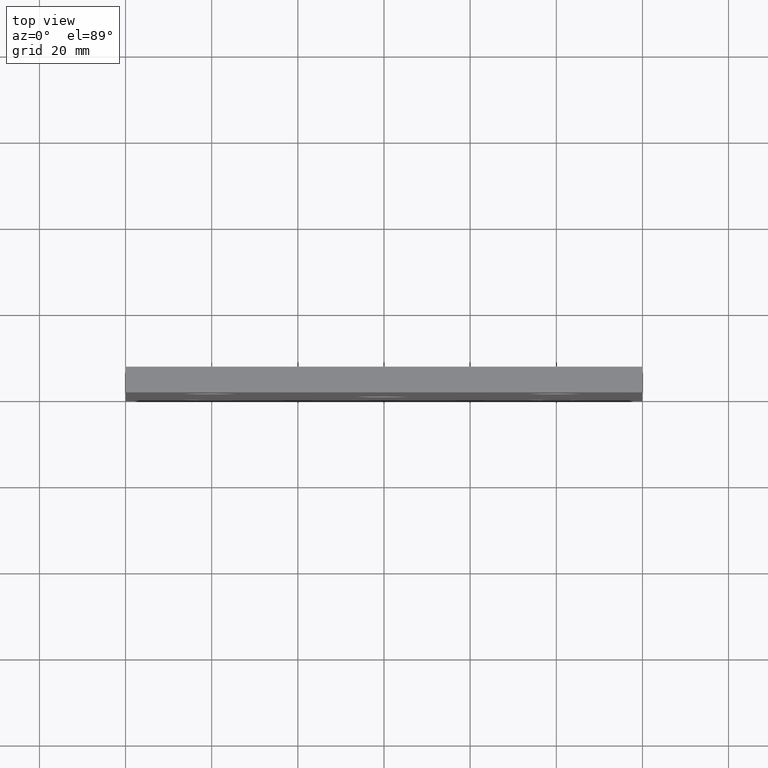
[diagram: clean part render]
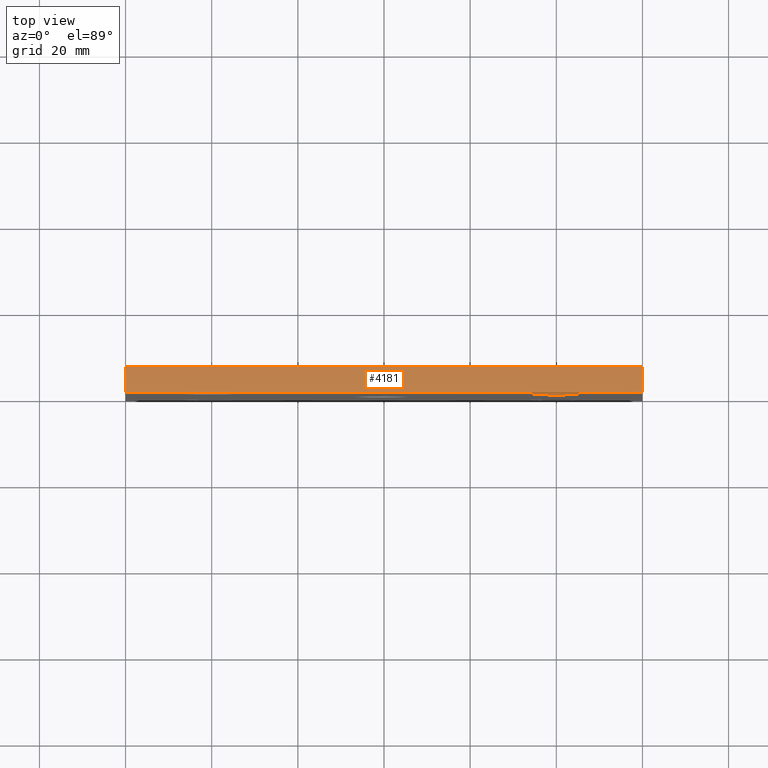
[diagram: same view with one face highlighted and labeled with its STEP entity id]
A machine part, top view. The second image highlights one B-rep face of the part: STEP entity #4181.
In plain terms, the highlighted planar face has unit normal (0, 0, -1).
Its self-contained STEP definition (entity closure, byte-faithful):
#787 = ORIENTED_EDGE ( 'NONE', *, *, #3077, .T. ) ;
#1112 = PLANE ( 'NONE',  #9495 ) ;
#2426 = DIRECTION ( 'NONE',  ( 1.000000000000000000, 0.000000000000000000, 0.000000000000000000 ) ) ;
#3077 = EDGE_CURVE ( 'NONE', #9053, #5321, #4914, .T. ) ;
#3381 = CARTESIAN_POINT ( 'NONE',  ( -60.00000000000000000, 6.000000000000000000, 60.00000000000001421 ) ) ;
#3888 = EDGE_CURVE ( 'NONE', #4809, #5464, #5377, .T. ) ;
#4036 = DIRECTION ( 'NONE',  ( -0.000000000000000000, -1.000000000000000000, -0.000000000000000000 ) ) ;
#4181 = ADVANCED_FACE ( 'NONE', ( #11673 ), #1112, .F. ) ;
#4809 = VERTEX_POINT ( 'NONE', #5505 ) ;
#4914 = LINE ( 'NONE', #5606, #10232 ) ;
#5039 = DIRECTION ( 'NONE',  ( -0.000000000000000000, -1.000000000000000000, -0.000000000000000000 ) ) ;
#5321 = VERTEX_POINT ( 'NONE', #5323 ) ;
#5323 = CARTESIAN_POINT ( 'NONE',  ( 60.00000000000000000, 0.000000000000000000, 60.00000000000001421 ) ) ;
#5377 = LINE ( 'NONE', #3381, #5545 ) ;
#5464 = VERTEX_POINT ( 'NONE', #11753 ) ;
#5505 = CARTESIAN_POINT ( 'NONE',  ( -60.00000000000000000, 6.000000000000000000, 60.00000000000001421 ) ) ;
#5545 = VECTOR ( 'NONE', #2426, 1000.000000000000000 ) ;
#5606 = CARTESIAN_POINT ( 'NONE',  ( -60.00000000000000000, 0.000000000000000000, 60.00000000000001421 ) ) ;
#5653 = DIRECTION ( 'NONE',  ( 1.000000000000000000, 0.000000000000000000, 0.000000000000000000 ) ) ;
#6153 = CARTESIAN_POINT ( 'NONE',  ( 60.00000000000000000, 6.000000000000000000, 60.00000000000001421 ) ) ;
#6373 = CARTESIAN_POINT ( 'NONE',  ( -60.00000000000000000, 6.000000000000000000, 60.00000000000001421 ) ) ;
#6776 = VECTOR ( 'NONE', #4036, 1000.000000000000000 ) ;
#7419 = DIRECTION ( 'NONE',  ( 0.000000000000000000, 0.000000000000000000, -1.000000000000000000 ) ) ;
#8214 = CARTESIAN_POINT ( 'NONE',  ( -60.00000000000000000, 6.000000000000000000, 60.00000000000001421 ) ) ;
#8451 = DIRECTION ( 'NONE',  ( -1.000000000000000000, 0.000000000000000000, -0.000000000000000000 ) ) ;
#8825 = LINE ( 'NONE', #6153, #10287 ) ;
#8867 = ORIENTED_EDGE ( 'NONE', *, *, #12160, .F. ) ;
#9053 = VERTEX_POINT ( 'NONE', #9149 ) ;
#9149 = CARTESIAN_POINT ( 'NONE',  ( -60.00000000000000000, 0.000000000000000000, 60.00000000000001421 ) ) ;
#9495 = AXIS2_PLACEMENT_3D ( 'NONE', #6373, #7419, #8451 ) ;
#9517 = LINE ( 'NONE', #8214, #6776 ) ;
#9860 = ORIENTED_EDGE ( 'NONE', *, *, #9886, .T. ) ;
#9886 = EDGE_CURVE ( 'NONE', #4809, #9053, #9517, .T. ) ;
#10186 = ORIENTED_EDGE ( 'NONE', *, *, #3888, .F. ) ;
#10232 = VECTOR ( 'NONE', #5653, 1000.000000000000000 ) ;
#10287 = VECTOR ( 'NONE', #5039, 1000.000000000000000 ) ;
#11673 = FACE_OUTER_BOUND ( 'NONE', #11788, .T. ) ;
#11753 = CARTESIAN_POINT ( 'NONE',  ( 60.00000000000000000, 6.000000000000000000, 60.00000000000001421 ) ) ;
#11788 = EDGE_LOOP ( 'NONE', ( #787, #8867, #10186, #9860 ) ) ;
#12160 = EDGE_CURVE ( 'NONE', #5464, #5321, #8825, .T. ) ;